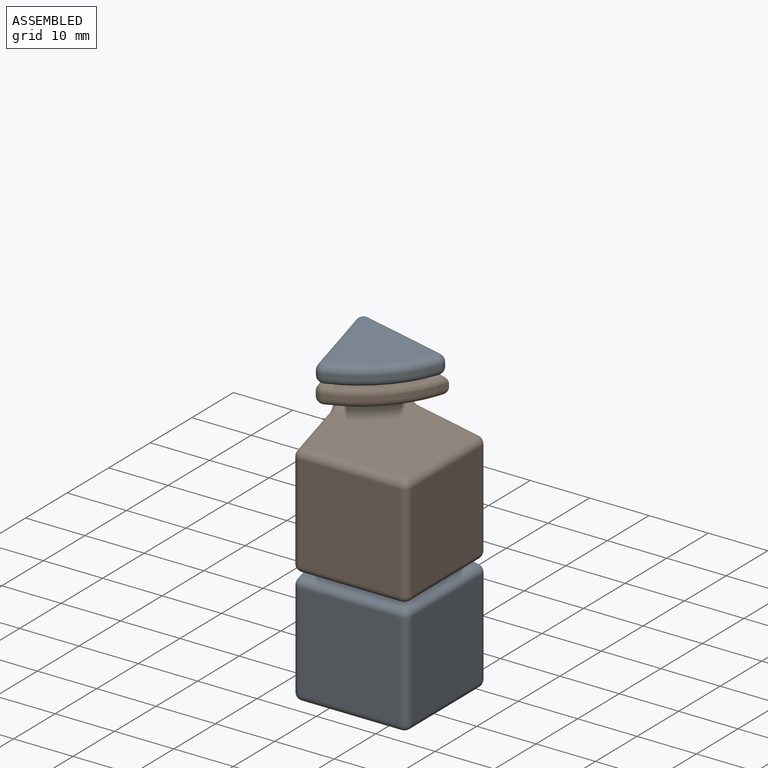
[diagram: assembled view]
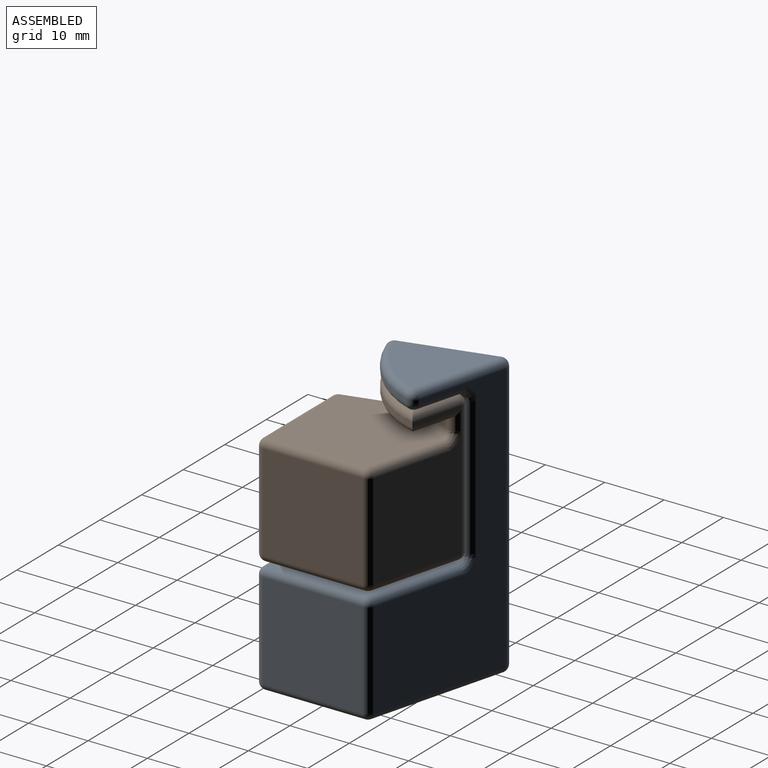
[diagram: assembled view, second angle]
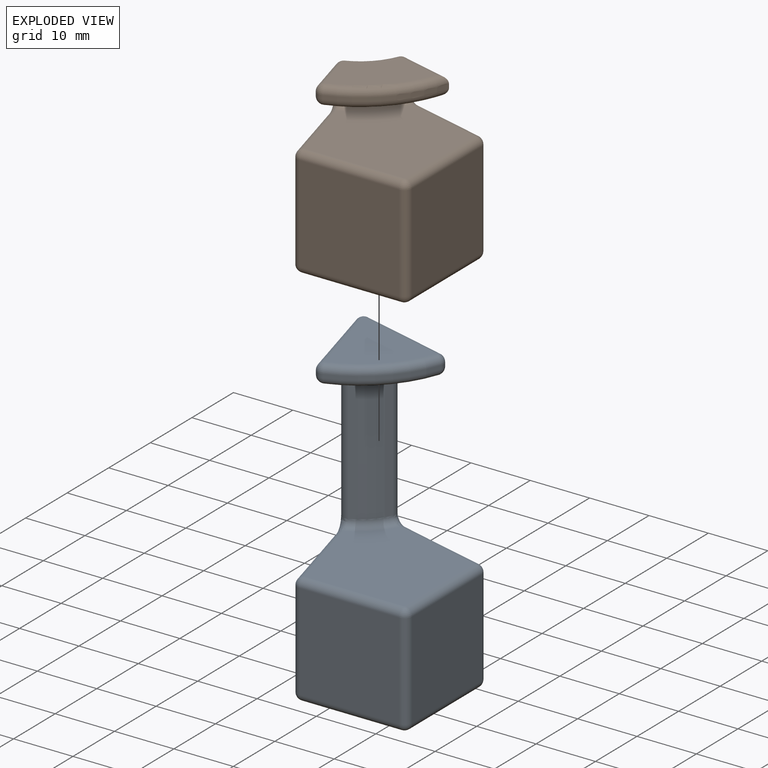
[diagram: exploded view]
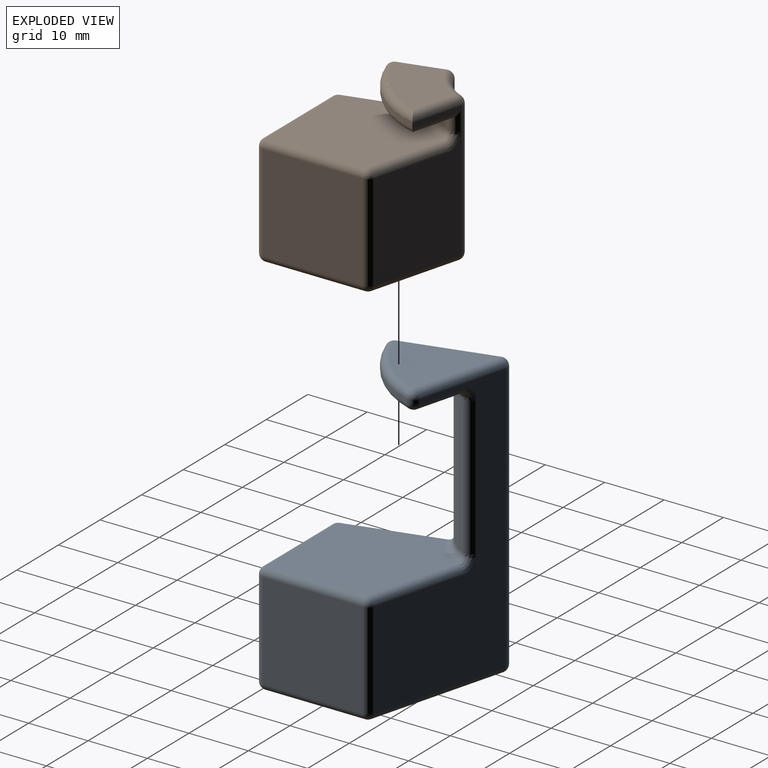
[diagram: exploded view, second angle]
ASSEMBLY  parts=2 mates=2
PART A: 50 faces, bbox 25.5x25.5x47.9 mm
  f0: plane 45.34x22.96mm, normal (-0.97,-0.26,0), area 550.2mm2, adj f20,f25,f29,f32,f33,f38,f42,f43
  f1: plane 16.81x16.26mm, normal (0,-1,0), area 273.2mm2, adj f11,f15,f19,f20
  f2: plane 16.81x16.26mm, normal (1,0,0), area 273.2mm2, adj f10,f11,f16,f17
  f3: plane 45.34x22.96mm, normal (0.26,0.97,0), area 550.2mm2, adj f17,f18,f23,f26,f27,f31,f33,f34
  f4: plane 20.92x20.92mm, normal (0,0,1), area 354.7mm2, adj f10,f18,f19,f28,f29
  f5: plane 22.96x22.96mm, normal (0,0,-1), area 385.8mm2, adj f15,f16,f25,f26
  f6: cylinder r=8.89mm len=23.37mm, axis (0,0,-1), area 148mm2, adj f27,f28,f37,f38
  f7: cylinder r=19.05mm len=11.77mm, axis (0,0,-1), area 10.9mm2, adj f35,f44,f45,f49
  f8: plane 15.01x15.01mm, normal (0,0,1), area 123.2mm2, adj f34,f43,f44
  f9: plane 12.97x12.97mm, normal (0,0,-1), area 92.1mm2, adj f36,f37,f45,f46
  f10: cylinder r=1.27mm len=16.81mm, axis (0,-1,0), area 33.5mm2, adj f2,f4,f13,f14
  f11: cylinder r=1.27mm len=16.26mm, axis (0,0,-1), area 32.4mm2, adj f1,f2,f12,f14
  f12: sphere r=1.27mm, area 2.5mm2, adj f11,f15,f16
  f13: sphere r=1.27mm, area 2.1mm2, adj f10,f17,f18
  f14: sphere r=1.27mm, area 2.5mm2, adj f10,f11,f19
  f15: cylinder r=1.27mm len=16.81mm, axis (1,0,0), area 33.5mm2, adj f1,f5,f12,f21
  f16: cylinder r=1.27mm len=16.81mm, axis (0,1,0), area 33.5mm2, adj f2,f5,f12,f22
  f17: cylinder r=1.27mm len=16.26mm, axis (0,0,1), area 27mm2, adj f2,f3,f13,f22
  f18: cylinder r=1.27mm len=15.67mm, axis (0.97,-0.26,0), area 31.7mm2, adj f3,f4,f13,f23
  f19: cylinder r=1.27mm len=16.81mm, axis (-1,0,0), area 33.5mm2, adj f1,f4,f14,f24
  f20: cylinder r=1.27mm len=16.26mm, axis (0,0,1), area 27mm2, adj f0,f1,f21,f24
  f21: sphere r=1.27mm, area 2.1mm2, adj f15,f20,f25
  f22: sphere r=1.27mm, area 2.1mm2, adj f16,f17,f26
  f23: bspline ~3.1x2.89mm, area 5.7mm2, adj f3,f18,f27,f28
  f24: sphere r=1.27mm, area 2.1mm2, adj f19,f20,f29
  f25: cylinder r=1.27mm len=23.29mm, axis (0.26,-0.97,0), area 47.4mm2, adj f0,f5,f21,f30
  f26: cylinder r=1.27mm len=23.29mm, axis (-0.97,0.26,0), area 47.4mm2, adj f3,f5,f22,f30
  f27: cylinder r=1.27mm len=23.37mm, axis (0,0,-1), area 51.6mm2, adj f3,f6,f23,f31
  f28: torus R=10.16mm, axis (0,0,1), area 13.9mm2, adj f4,f6,f23,f32
  f29: cylinder r=1.27mm len=15.67mm, axis (-0.26,0.97,0), area 31.7mm2, adj f0,f4,f24,f32
  f30: sphere r=1.27mm, area 3.4mm2, adj f25,f26,f33
  f31: bspline ~3.04x3mm, area 5.7mm2, adj f3,f27,f36,f37
  f32: bspline ~3.04x3mm, area 5.7mm2, adj f0,f28,f29,f38
  f33: cylinder r=1.27mm len=45.34mm, axis (0,0,-1), area 120.6mm2, adj f0,f3,f30,f39
  f34: cylinder r=1.27mm len=15.33mm, axis (0.97,-0.26,0), area 31mm2, adj f3,f8,f39,f40
  f35: cylinder r=1.27mm len=1.64mm, axis (0,0,-1), area 1.3mm2, adj f3,f7,f40,f41
  f36: cylinder r=1.27mm len=7.72mm, axis (-0.97,0.26,0), area 15.3mm2, adj f3,f9,f31,f41
  f37: torus R=10.16mm, axis (0,0,1), area 13.9mm2, adj f6,f9,f31,f42
  f38: cylinder r=1.27mm len=23.37mm, axis (0,0,-1), area 51.6mm2, adj f0,f6,f32,f42
  f39: sphere r=1.27mm, area 3.4mm2, adj f33,f34,f43
  f40: sphere r=1.27mm, area 2.6mm2, adj f34,f35,f44
  f41: sphere r=1.27mm, area 2.6mm2, adj f35,f36,f45
  f42: bspline ~3.1x2.89mm, area 5.7mm2, adj f0,f37,f38,f46
  f43: cylinder r=1.27mm len=15.33mm, axis (0.26,-0.97,0), area 31mm2, adj f0,f8,f39,f47
  f44: torus R=17.78mm, axis (0,0,1), area 33.5mm2, adj f7,f8,f40,f47
  f45: torus R=17.78mm, axis (0,0,1), area 33.5mm2, adj f7,f9,f41,f48
  f46: cylinder r=1.27mm len=7.72mm, axis (-0.26,0.97,0), area 15.3mm2, adj f0,f9,f42,f48
  f47: sphere r=1.27mm, area 2.6mm2, adj f43,f44,f49
  f48: sphere r=1.27mm, area 2.6mm2, adj f45,f46,f49
  f49: cylinder r=1.27mm len=1.64mm, axis (0,0,-1), area 1.3mm2, adj f0,f7,f47,f48
PART B: 50 faces, bbox 23.4x23.4x25.1 mm
  f0: plane 8.54x2.29mm, normal (-0.97,0.26,0), area 5.6mm2, adj f11,f35,f40,f42
  f1: plane 7.27x1.95mm, normal (0.26,-0.97,0), area 4.8mm2, adj f37,f44,f45,f49
  f2: cylinder r=11.56mm len=6.36mm, axis (0,0,-1), area 17.6mm2, adj f12,f32,f35,f37
  f3: plane 16.81x16.26mm, normal (0,1,0), area 273.2mm2, adj f13,f15,f16,f17
  f4: plane 18.8x15.22mm, normal (-0.97,0.26,0), area 257.6mm2, adj f16,f25,f26,f31,f35
  f5: cylinder r=9.02mm len=22.61mm, axis (0,0,-1), area 163mm2, adj f29,f35,f37,f38
  f6: plane 18.8x15.22mm, normal (0.26,-0.97,0), area 257.6mm2, adj f23,f28,f33,f36,f37
  f7: plane 16.81x16.26mm, normal (1,0,0), area 273.2mm2, adj f13,f19,f22,f23
  f8: plane 20.22x20.22mm, normal (0,0,1), area 329.4mm2, adj f17,f22,f26,f32,f33
  f9: plane 20.88x20.88mm, normal (0,0,-1), area 353.7mm2, adj f15,f19,f25,f28,f29
  f10: plane 12.93x12.93mm, normal (0,0,1), area 91.1mm2, adj f38,f42,f45,f46
  f11: cylinder r=19.05mm len=13.07mm, axis (0,0,1), area 11.8mm2, adj f0,f43,f46,f49
  f12: plane 12.6x12.6mm, normal (0,0,-1), area 79.8mm2, adj f2,f35,f37,f40,f43,f44
  f13: cylinder r=1.27mm len=16.26mm, axis (0,0,-1), area 32.4mm2, adj f3,f7,f14,f18
  f14: sphere r=1.27mm, area 2.5mm2, adj f13,f15,f19
  f15: cylinder r=1.27mm len=16.81mm, axis (-1,0,0), area 33.5mm2, adj f3,f9,f14,f20
  f16: cylinder r=1.27mm len=16.26mm, axis (0,0,1), area 27mm2, adj f3,f4,f20,f21
  f17: cylinder r=1.27mm len=16.81mm, axis (1,0,0), area 33.5mm2, adj f3,f8,f18,f21
  f18: sphere r=1.27mm, area 2.5mm2, adj f13,f17,f22
  f19: cylinder r=1.27mm len=16.81mm, axis (0,1,0), area 33.5mm2, adj f7,f9,f14,f24
  f20: sphere r=1.27mm, area 2.1mm2, adj f15,f16,f25
  f21: sphere r=1.27mm, area 2.1mm2, adj f16,f17,f26
  f22: cylinder r=1.27mm len=16.81mm, axis (0,-1,0), area 33.5mm2, adj f7,f8,f18,f27
  f23: cylinder r=1.27mm len=16.26mm, axis (0,0,1), area 27mm2, adj f6,f7,f24,f27
  f24: sphere r=1.27mm, area 2.1mm2, adj f19,f23,f28
  f25: cylinder r=1.27mm len=15.55mm, axis (-0.26,-0.97,0), area 31.4mm2, adj f4,f9,f20,f30
  f26: cylinder r=1.27mm len=13.08mm, axis (0.26,0.97,0), area 26.3mm2, adj f4,f8,f21,f31
  f27: sphere r=1.27mm, area 2.1mm2, adj f22,f23,f33
  f28: cylinder r=1.27mm len=15.55mm, axis (0.97,0.26,0), area 31.4mm2, adj f6,f9,f24,f34
  f29: torus R=10.29mm, axis (0,0,1), area 15.1mm2, adj f5,f9,f30,f34
  f30: sphere r=1.27mm, area 2.3mm2, adj f25,f29,f35
  f31: bspline ~3.11x2.88mm, area 5.6mm2, adj f4,f26,f32,f35
  f32: torus R=12.83mm, axis (0,0,1), area 19.6mm2, adj f2,f8,f31,f36
  f33: cylinder r=1.27mm len=13.08mm, axis (-0.97,-0.26,0), area 26.3mm2, adj f6,f8,f27,f36
  f34: sphere r=1.27mm, area 2.3mm2, adj f28,f29,f37
  f35: cylinder r=1.27mm len=22.61mm, axis (0,0,-1), area 46.6mm2, adj f0,f2,f4,f5,f12,f30,f31,f39
  f36: bspline ~3.03x2.99mm, area 5.6mm2, adj f6,f32,f33,f37
  f37: cylinder r=1.27mm len=22.61mm, axis (0,0,-1), area 46.6mm2, adj f1,f2,f5,f6,f12,f34,f36,f41
  f38: torus R=10.29mm, axis (0,0,1), area 15.1mm2, adj f5,f10,f39,f41
  f39: sphere r=1.27mm, area 2.3mm2, adj f35,f38,f42
  f40: cylinder r=1.27mm len=8.87mm, axis (0.26,0.97,0), area 15.1mm2, adj f0,f12,f35,f43
  f41: sphere r=1.27mm, area 2.3mm2, adj f37,f38,f45
  f42: cylinder r=1.27mm len=8.87mm, axis (0.26,0.97,0), area 16.7mm2, adj f0,f10,f39,f46
  f43: torus R=17.78mm, axis (0,0,1), area 35.3mm2, adj f11,f12,f40,f47
  f44: cylinder r=1.27mm len=7.6mm, axis (0.97,0.26,0), area 13.4mm2, adj f1,f12,f37,f47
  f45: cylinder r=1.27mm len=7.6mm, axis (-0.97,-0.26,0), area 15mm2, adj f1,f10,f41,f48
  f46: torus R=17.78mm, axis (0,0,1), area 35.3mm2, adj f10,f11,f42,f48
  f47: sphere r=1.27mm, area 2.6mm2, adj f43,f44,f49
  f48: sphere r=1.27mm, area 2.6mm2, adj f45,f46,f49
  f49: cylinder r=1.27mm len=1.64mm, axis (0,0,1), area 1.3mm2, adj f1,f11,f47,f48
PLACE A t=(-14.23,0.56,3.51)mm fixed
PLACE B rot(axis=(0,0,-1),90deg) t=(13.78,19.61,23.07)mm
MATE planar B.f10 <-> A.f9  axis (0,0,1) through (-11.34,16.69,48.21)mm
MATE planar B.f7 <-> A.f1  axis (0,-1,0) through (-4.88,0.56,32.47)mm
